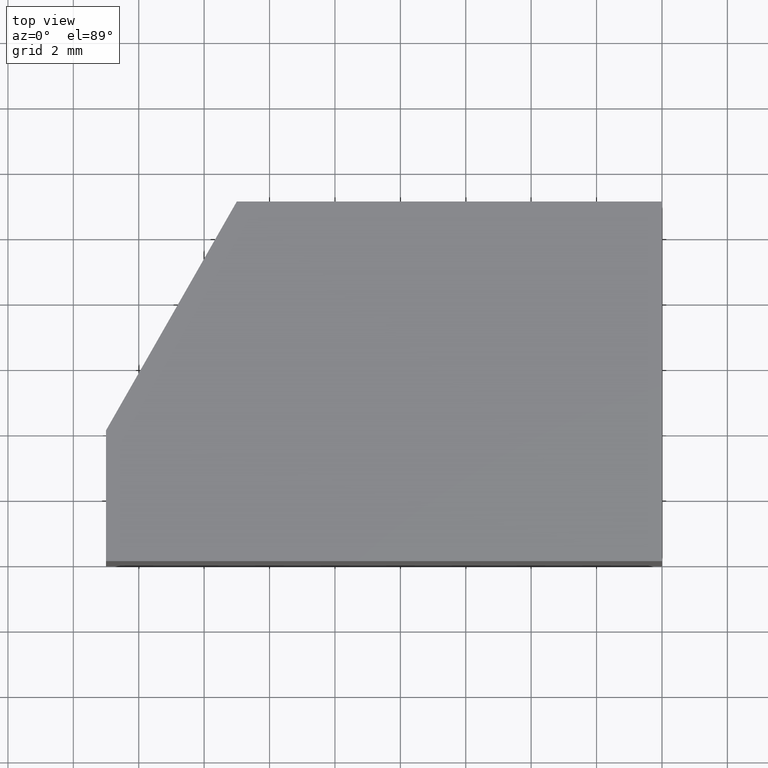
[diagram: clean part render]
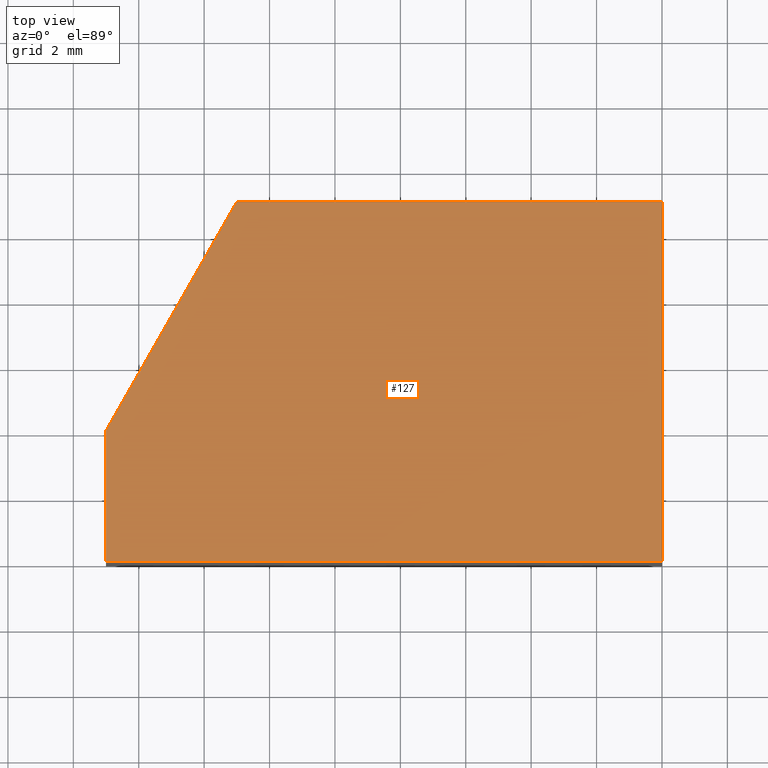
[diagram: same view with one face highlighted and labeled with its STEP entity id]
A machine part, top view. The second image highlights one B-rep face of the part: STEP entity #127.
In plain terms, the highlighted planar face has unit normal (0, 0, 1).
Its self-contained STEP definition (entity closure, byte-faithful):
#21=FACE_OUTER_BOUND('',#28,.T.);
#28=EDGE_LOOP('',(#109,#110,#111,#112,#113));
#34=LINE('',#204,#49);
#37=LINE('',#209,#52);
#39=LINE('',#213,#54);
#41=LINE('',#217,#56);
#43=LINE('',#220,#58);
#49=VECTOR('',#169,10.);
#52=VECTOR('',#174,10.);
#54=VECTOR('',#178,10.);
#56=VECTOR('',#182,10.);
#58=VECTOR('',#186,10.);
#64=VERTEX_POINT('',#202);
#65=VERTEX_POINT('',#203);
#66=VERTEX_POINT('',#208);
#67=VERTEX_POINT('',#212);
#68=VERTEX_POINT('',#216);
#74=EDGE_CURVE('',#64,#65,#34,.T.);
#77=EDGE_CURVE('',#65,#66,#37,.T.);
#79=EDGE_CURVE('',#66,#67,#39,.T.);
#81=EDGE_CURVE('',#67,#68,#41,.T.);
#83=EDGE_CURVE('',#68,#64,#43,.T.);
#109=ORIENTED_EDGE('',*,*,#74,.F.);
#110=ORIENTED_EDGE('',*,*,#83,.F.);
#111=ORIENTED_EDGE('',*,*,#81,.F.);
#112=ORIENTED_EDGE('',*,*,#79,.F.);
#113=ORIENTED_EDGE('',*,*,#77,.F.);
#120=PLANE('',#157);
#127=ADVANCED_FACE('',(#21),#120,.T.);
#157=AXIS2_PLACEMENT_3D('',#221,#187,#188);
#169=DIRECTION('',(-1.,-1.24491397560035E-16,0.));
#174=DIRECTION('',(0.,1.,0.));
#178=DIRECTION('',(0.496138938356834,0.868243142124459,0.));
#182=DIRECTION('',(1.,1.70803542250024E-16,0.));
#186=DIRECTION('',(0.,-1.,0.));
#187=DIRECTION('center_axis',(0.,0.,1.));
#188=DIRECTION('ref_axis',(1.,0.,0.));
#202=CARTESIAN_POINT('',(0.,1.83879800236431E-15,4.75));
#203=CARTESIAN_POINT('',(-17.,-2.77555756156289E-16,4.75));
#204=CARTESIAN_POINT('',(0.,1.83879800236431E-15,4.75));
#208=CARTESIAN_POINT('',(-17.,4.,4.75));
#209=CARTESIAN_POINT('',(-17.,-2.77555756156289E-16,4.75));
#212=CARTESIAN_POINT('',(-13.,11.,4.75));
#213=CARTESIAN_POINT('',(-17.,4.,4.75));
#216=CARTESIAN_POINT('',(0.,11.,4.75));
#217=CARTESIAN_POINT('',(-13.,11.,4.75));
#220=CARTESIAN_POINT('',(0.,11.,4.75));
#221=CARTESIAN_POINT('Origin',(-7.87629256574329,5.12543085524776,4.75));